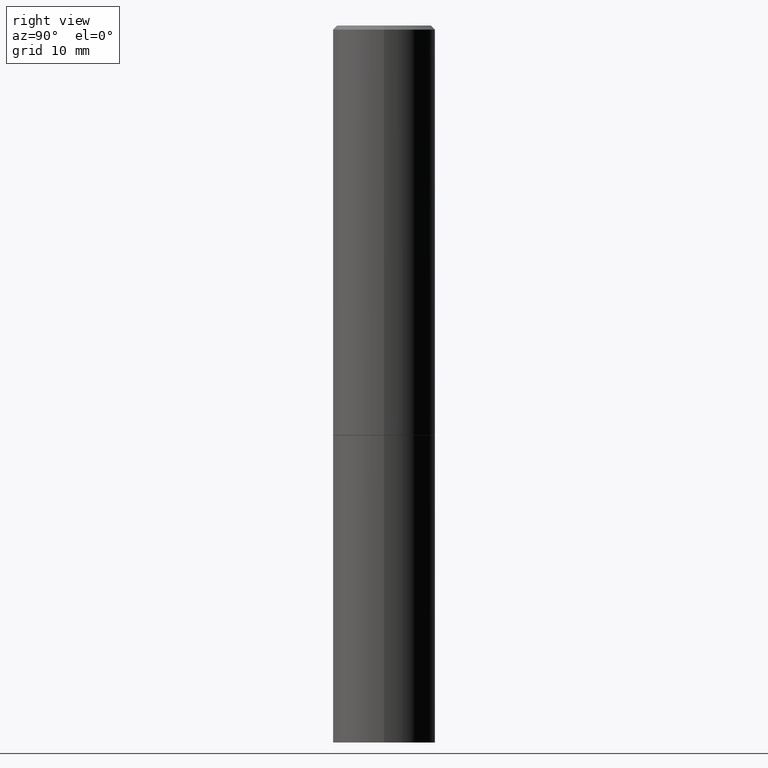
[diagram: clean part render]
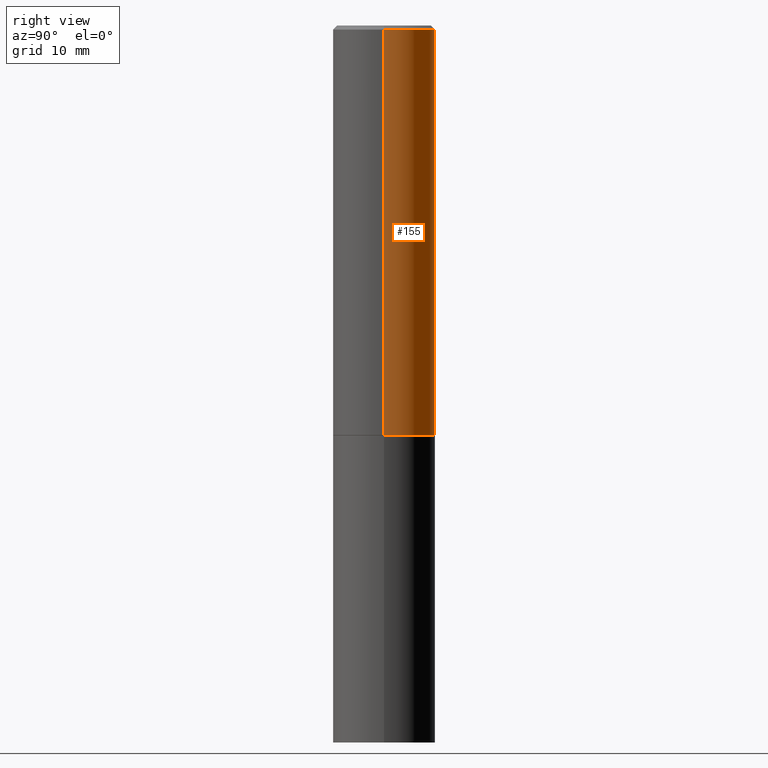
[diagram: same view with one face highlighted and labeled with its STEP entity id]
A machine part, right view. The second image highlights one B-rep face of the part: STEP entity #155.
In plain terms, the highlighted cylindrical surface (partial cylindrical patch) has radius 6.35 mm, axis along (-0, 0, 1).
Its self-contained STEP definition (entity closure, byte-faithful):
#12 = DIRECTION ( 'NONE',  ( -2.445468806185136597E-29, 3.491481338843145583E-15, 1.000000000000000000 ) ) ;
#22 = EDGE_LOOP ( 'NONE', ( #104, #274, #108, #306 ) ) ;
#23 = LINE ( 'NONE', #105, #312 ) ;
#35 = DIRECTION ( 'NONE',  ( 1.000000000000000000, -6.982962677686266711E-15, 4.876176775795935793E-29 ) ) ;
#38 = EDGE_CURVE ( 'NONE', #342, #194, #277, .T. ) ;
#40 = CARTESIAN_POINT ( 'NONE',  ( 4.888492143564087591E-29, -6.979471196347447369E-15, -1.998999999999999888 ) ) ;
#41 = EDGE_CURVE ( 'NONE', #210, #194, #247, .T. ) ;
#64 = DIRECTION ( 'NONE',  ( -2.445468806185136597E-29, 3.491481338843145583E-15, 1.000000000000000000 ) ) ;
#68 = CARTESIAN_POINT ( 'NONE',  ( -0.2500000000000000000, -1.748293572161903489E-15, -1.998999999999999888 ) ) ;
#71 = CARTESIAN_POINT ( 'NONE',  ( 4.890937612370287172E-31, -6.982962677686310098E-17, -0.02000000000000005593 ) ) ;
#72 = CARTESIAN_POINT ( 'NONE',  ( -0.2499999999999998057, 1.675911042644702196E-15, -0.02000000000000005593 ) ) ;
#80 = DIRECTION ( 'NONE',  ( -2.445468806185136877E-29, 3.491481338843145188E-15, 1.000000000000000000 ) ) ;
#104 = ORIENTED_EDGE ( 'NONE', *, *, #199, .T. ) ;
#105 = CARTESIAN_POINT ( 'NONE',  ( 0.2499999999999998890, -1.745740669421565889E-15, 1.219044193948983388E-29 ) ) ;
#108 = ORIENTED_EDGE ( 'NONE', *, *, #38, .F. ) ;
#134 = DIRECTION ( 'NONE',  ( 1.000000000000000000, -6.982962677686266711E-15, 0.000000000000000000 ) ) ;
#155 = ADVANCED_FACE ( 'NONE', ( #355 ), #292, .T. ) ;
#166 = CARTESIAN_POINT ( 'NONE',  ( 0.000000000000000000, 0.000000000000000000, 0.000000000000000000 ) ) ;
#180 = CIRCLE ( 'NONE', #357, 0.2500000000000000000 ) ;
#194 = VERTEX_POINT ( 'NONE', #72 ) ;
#199 = EDGE_CURVE ( 'NONE', #236, #210, #180, .T. ) ;
#210 = VERTEX_POINT ( 'NONE', #68 ) ;
#221 = CARTESIAN_POINT ( 'NONE',  ( -0.2499999999999998890, 1.776356839400249676E-15, -1.229733772563726025E-29 ) ) ;
#229 = AXIS2_PLACEMENT_3D ( 'NONE', #71, #12, #134 ) ;
#236 = VERTEX_POINT ( 'NONE', #272 ) ;
#243 = DIRECTION ( 'NONE',  ( -2.445468806185136597E-29, 3.491481338843145583E-15, 1.000000000000000000 ) ) ;
#245 = EDGE_CURVE ( 'NONE', #236, #342, #23, .T. ) ;
#247 = LINE ( 'NONE', #221, #364 ) ;
#272 = CARTESIAN_POINT ( 'NONE',  ( 0.2500000000000000000, -8.725211865769014047E-15, -1.998999999999999888 ) ) ;
#274 = ORIENTED_EDGE ( 'NONE', *, *, #41, .T. ) ;
#277 = CIRCLE ( 'NONE', #229, 0.2499999999999998057 ) ;
#285 = CARTESIAN_POINT ( 'NONE',  ( 0.2499999999999998057, -1.784954126219744611E-15, -0.02000000000000005593 ) ) ;
#291 = AXIS2_PLACEMENT_3D ( 'NONE', #166, #64, #35 ) ;
#292 = CYLINDRICAL_SURFACE ( 'NONE', #291, 0.2499999999999998890 ) ;
#297 = DIRECTION ( 'NONE',  ( -2.445468806185136877E-29, 3.491481338843145188E-15, 1.000000000000000000 ) ) ;
#306 = ORIENTED_EDGE ( 'NONE', *, *, #245, .F. ) ;
#312 = VECTOR ( 'NONE', #80, 39.37007874015748143 ) ;
#342 = VERTEX_POINT ( 'NONE', #285 ) ;
#350 = DIRECTION ( 'NONE',  ( 1.000000000000000000, -6.982962677686266711E-15, 0.000000000000000000 ) ) ;
#355 = FACE_OUTER_BOUND ( 'NONE', #22, .T. ) ;
#357 = AXIS2_PLACEMENT_3D ( 'NONE', #40, #243, #350 ) ;
#364 = VECTOR ( 'NONE', #297, 39.37007874015748143 ) ;